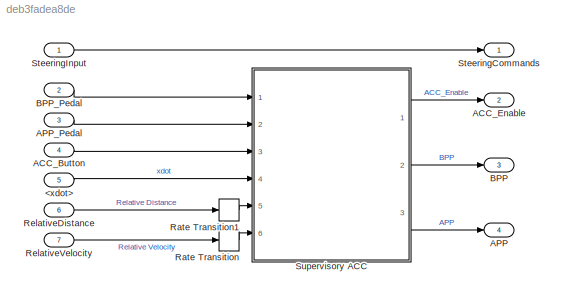
MODEL slx_deb3fadea8de
KIND model
CONFIG AbsTol = auto
CONFIG EnableMultiTasking = off
CONFIG FixedStep = 0.01
CONFIG InitFcn = initACCParams_pid;
CONFIG MaxStep = auto
CONFIG MinStep = auto
CONFIG PreLoadFcn = Ts1 = 0.01;\nTs2 = 0.1;
CONFIG RelTol = 1e-3
CONFIG SampleTimeConstraint = Unconstrained
CONFIG Solver = ode3
CONFIG SolverName = ode3
CONFIG StartTime = 0.0
CONFIG StopTime = 10
WORKSPACE source: mxarray member
WORKSPACE firstWarning = 1
WORKSPACE originalScenarioChecksum = '3C3E23DDE530CB8BEC76DD6DBB66960A'
BLOCK [Inport] <xdot>
  IconDisplay = Port number
  OutDataTypeStr = double
  Port = 5
  PortDimensions = 1
  SampleTime = Ts1
  SamplingMode = Sample based
  SignalType = real
BLOCK [Inport] ACC_Button
  IconDisplay = Port number
  OutDataTypeStr = double
  Port = 4
  PortDimensions = 1
  SampleTime = Ts1
  SamplingMode = Sample based
  SignalType = real
BLOCK [Outport] ACC_Enable
  IconDisplay = Port number
  OutDataTypeStr = double
  Port = 2
  PortDimensions = 1
  SamplingMode = Sample based
  SignalType = real
BLOCK [Outport] APP
  IconDisplay = Port number
  OutDataTypeStr = double
  Port = 4
  PortDimensions = 1
  SamplingMode = Sample based
  SignalType = real
BLOCK [Inport] APP_Pedal
  IconDisplay = Port number
  OutDataTypeStr = double
  Port = 3
  PortDimensions = 1
  SampleTime = Ts1
  SamplingMode = Sample based
  SignalType = real
BLOCK [Outport] BPP
  IconDisplay = Port number
  OutDataTypeStr = double
  Port = 3
  PortDimensions = 1
  SamplingMode = Sample based
  SignalType = real
BLOCK [Inport] BPP_Pedal
  IconDisplay = Port number
  OutDataTypeStr = double
  Port = 2
  PortDimensions = 1
  SampleTime = Ts1
  SamplingMode = Sample based
  SignalType = real
BLOCK [RateTransition] Rate Transition
BLOCK [RateTransition] Rate Transition1
BLOCK [Inport] RelativeDistance
  IconDisplay = Port number
  OutDataTypeStr = double
  Port = 6
  PortDimensions = [1 1]
  SampleTime = Ts2
  SamplingMode = Sample based
  SignalType = real
BLOCK [Inport] RelativeVelocity
  IconDisplay = Port number
  OutDataTypeStr = double
  Port = 7
  PortDimensions = [1 1]
  SampleTime = Ts2
  SamplingMode = Sample based
  SignalType = real
BLOCK [Outport] SteeringCommands
  IconDisplay = Port number
  OutDataTypeStr = double
  PortDimensions = 1
  SamplingMode = Sample based
  SignalType = real
BLOCK [Inport] SteeringInput 
  IconDisplay = Port number
  OutDataTypeStr = double
  PortDimensions = 1
  SampleTime = Ts1
  SamplingMode = Sample based
  SignalType = real
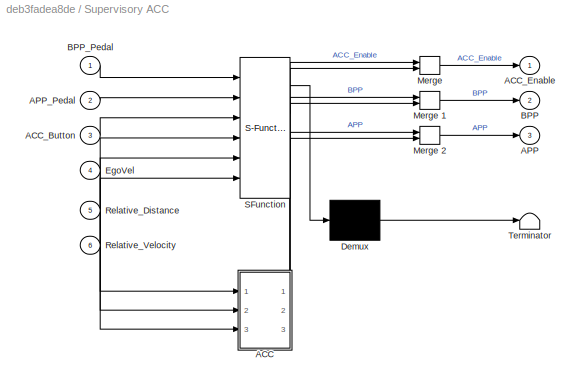
BLOCK [SubSystem] Supervisory ACC
  BlockKeywords = __PRM__SERIALIZED__DATA__:Stateflow Chart,Stateflow Diagram
  ErrorFcn = Stateflow.Translate.translate
  PermitHierarchicalResolution = ExplicitOnly
  Ports = [6, 3]
  RequestExecContextInheritance = off
  SFBlockType = Chart
  TreatAsAtomicUnit = on
BLOCK [Demux] Supervisory ACC/ Demux 
  Outputs = 1
  Ports = [1, 1]
BLOCK [Merge] Supervisory ACC/ Merge 
  Ports = [2, 1]
BLOCK [Merge] Supervisory ACC/ Merge 1
  Ports = [2, 1]
BLOCK [Merge] Supervisory ACC/ Merge 2
  Ports = [2, 1]
BLOCK [S-Function] Supervisory ACC/ SFunction 
  EnableBusSupport = on
  FunctionName = sf_sfun
  PortCounts = [6 4]
  Ports = [6, 4]
  SFcnIsStateOwnerBlock = off
  SFunctionDeploymentMode = off
  Tag = Stateflow S-Function 3
BLOCK [Terminator] Supervisory ACC/ Terminator 
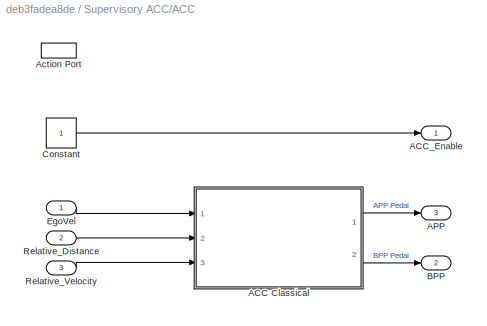
BLOCK [SubSystem] Supervisory ACC/ACC
  Ports = [3, 3, 0, 0, 0, 0, 0, 1]
  PreDeleteFcn = Stateflow.SLINSF.SimulinkMan.removePreDeleteFcn
  RequestExecContextInheritance = off
  UndoDeleteFcn = Stateflow.SLINSF.SimulinkMan.restorePreDeleteFcn
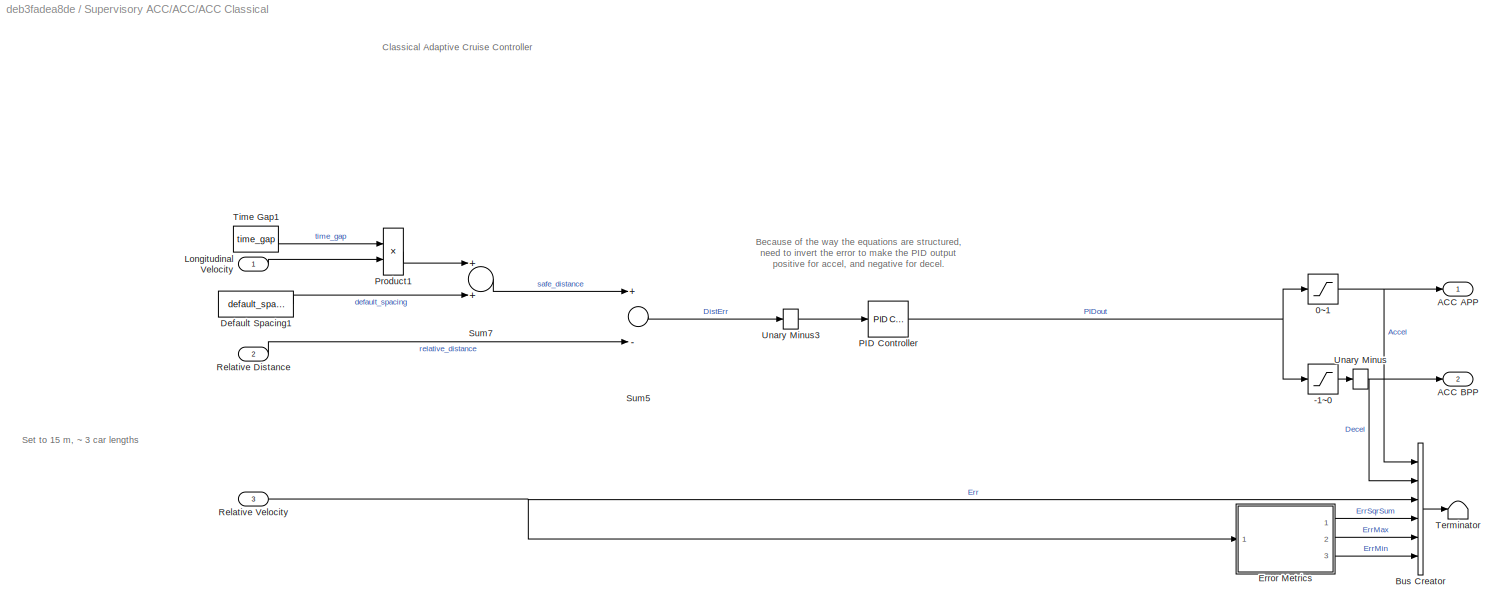
BLOCK [SubSystem] Supervisory ACC/ACC/ACC Classical
  Ports = [3, 2]
  RTWFileNameOpts = Use function name
  RTWSystemCode = Reusable function
  RequestExecContextInheritance = off
  VariantControl = controller_type == 1
BLOCK [Saturate] Supervisory ACC/ACC/ACC Classical/-1~0
  InputPortMap = u0
  LowerLimit = -1
  Ports = [1, 1]
  UpperLimit = 0
  ZeroCross = off
BLOCK [Saturate] Supervisory ACC/ACC/ACC Classical/0~1
  InputPortMap = u0
  LowerLimit = 0
  Ports = [1, 1]
  UpperLimit = 1
  ZeroCross = off
BLOCK [Outport] Supervisory ACC/ACC/ACC Classical/ACC APP
  IconDisplay = Port number
  InitialOutput = 0
  Unit = one
  VectorParamsAs1DForOutWhenUnconnected = off
BLOCK [Outport] Supervisory ACC/ACC/ACC Classical/ACC BPP
  IconDisplay = Port number
  InitialOutput = 0
  Port = 2
  Unit = one
  VectorParamsAs1DForOutWhenUnconnected = off
BLOCK [BusCreator] Supervisory ACC/ACC/ACC Classical/Bus Creator
  DisplayOption = bar
  InheritFromInputs = on
  Inputs = 6
  Ports = [6, 1]
BLOCK [Constant] Supervisory ACC/ACC/ACC Classical/Default Spacing1
  SampleTime = -1
  Value = default_spacing
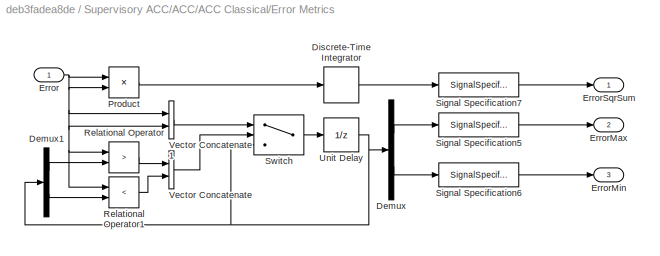
BLOCK [SubSystem] Supervisory ACC/ACC/ACC Classical/Error Metrics
  Ports = [1, 3]
  RequestExecContextInheritance = off
BLOCK [Demux] Supervisory ACC/ACC/ACC Classical/Error Metrics/Demux
  DisplayOption = bar
  Outputs = 2
  Ports = [1, 2]
BLOCK [Demux] Supervisory ACC/ACC/ACC Classical/Error Metrics/Demux1
  DisplayOption = bar
  Outputs = 2
  Ports = [1, 2]
BLOCK [DiscreteIntegrator] Supervisory ACC/ACC/ACC Classical/Error Metrics/Discrete-Time Integrator
  ICPrevOutput = DiscIntNeverNeededParam
  ICPrevScaledInput = DiscIntNeverNeededParam
  InitialConditionSetting = Auto
  Ports = [1, 1]
  SampleTime = -1
BLOCK [Inport] Supervisory ACC/ACC/ACC Classical/Error Metrics/Error
  IconDisplay = Port number
BLOCK [Outport] Supervisory ACC/ACC/ACC Classical/Error Metrics/ErrorMax
  IconDisplay = Port number
  Port = 2
  VectorParamsAs1DForOutWhenUnconnected = off
BLOCK [Outport] Supervisory ACC/ACC/ACC Classical/Error Metrics/ErrorMin
  IconDisplay = Port number
  Port = 3
  VectorParamsAs1DForOutWhenUnconnected = off
BLOCK [Outport] Supervisory ACC/ACC/ACC Classical/Error Metrics/ErrorSqrSum
  IconDisplay = Port number
  VectorParamsAs1DForOutWhenUnconnected = off
BLOCK [Product] Supervisory ACC/ACC/ACC Classical/Error Metrics/Product
  InputSameDT = off
  OutDataTypeStr = Inherit: Inherit via internal rule
  Ports = [2, 1]
  RndMeth = Floor
  SaturateOnIntegerOverflow = off
BLOCK [RelationalOperator] Supervisory ACC/ACC/ACC Classical/Error Metrics/Relational Operator
  InputSameDT = off
  Operator = >
  OutDataTypeStr = boolean
  Ports = [2, 1]
  RndMeth = Simplest
  ZeroCross = off
BLOCK [RelationalOperator] Supervisory ACC/ACC/ACC Classical/Error Metrics/Relational Operator1
  InputSameDT = off
  Operator = <
  OutDataTypeStr = boolean
  Ports = [2, 1]
  RndMeth = Simplest
  ZeroCross = off
BLOCK [SignalSpecification] Supervisory ACC/ACC/ACC Classical/Error Metrics/Signal Specification5
  Unit = m/s
BLOCK [SignalSpecification] Supervisory ACC/ACC/ACC Classical/Error Metrics/Signal Specification6
  Unit = m/s
BLOCK [SignalSpecification] Supervisory ACC/ACC/ACC Classical/Error Metrics/Signal Specification7
  Unit = m^2/s^2
BLOCK [Switch] Supervisory ACC/ACC/ACC Classical/Error Metrics/Switch
  Criteria = u2 > Threshold
  InputSameDT = off
  SaturateOnIntegerOverflow = off
BLOCK [UnitDelay] Supervisory ACC/ACC/ACC Classical/Error Metrics/Unit Delay
  HasFrameUpgradeWarning = on
  InitialCondition = [0,0]
  SampleTime = -1
BLOCK [Concatenate] Supervisory ACC/ACC/ACC Classical/Error Metrics/Vector Concatenate
  Ports = [2, 1]
BLOCK [Concatenate] Supervisory ACC/ACC/ACC Classical/Error Metrics/Vector Concatenate1
  Ports = [2, 1]
BLOCK [Inport] Supervisory ACC/ACC/ACC Classical/Longitudinal Velocity
  IconDisplay = Port number
BLOCK [Reference] Supervisory ACC/ACC/ACC Classical/PID Controller  REF=simulink/Continuous/PID Controller
  Ports = [1, 1]
  SourceBlock = simulink/Continuous/PID Controller
  SourceProductBaseCode = SL
  SourceProductName = Simulink
  SourceType = PID 1dof
BLOCK [Product] Supervisory ACC/ACC/ACC Classical/Product1
  InputSameDT = off
  OutDataTypeStr = Inherit: Inherit via internal rule
  Ports = [2, 1]
  RndMeth = Floor
  SaturateOnIntegerOverflow = off
BLOCK [Inport] Supervisory ACC/ACC/ACC Classical/Relative Distance
  IconDisplay = Port number
  Port = 2
BLOCK [Inport] Supervisory ACC/ACC/ACC Classical/Relative Velocity
  IconDisplay = Port number
  Port = 3
BLOCK [Sum] Supervisory ACC/ACC/ACC Classical/Sum5
  InputSameDT = off
  Inputs = +-
  OutDataTypeStr = Inherit: Inherit via internal rule
  Ports = [2, 1]
  SaturateOnIntegerOverflow = off
BLOCK [Sum] Supervisory ACC/ACC/ACC Classical/Sum7
  InputSameDT = off
  OutDataTypeStr = Inherit: Inherit via internal rule
  Ports = [2, 1]
  SaturateOnIntegerOverflow = off
BLOCK [Terminator] Supervisory ACC/ACC/ACC Classical/Terminator
BLOCK [Constant] Supervisory ACC/ACC/ACC Classical/Time Gap1
  SampleTime = -1
  Value = time_gap
BLOCK [UnaryMinus] Supervisory ACC/ACC/ACC Classical/Unary Minus
BLOCK [UnaryMinus] Supervisory ACC/ACC/ACC Classical/Unary Minus3
BLOCK [Outport] Supervisory ACC/ACC/ACC_Enable
  IconDisplay = Port number
BLOCK [Outport] Supervisory ACC/ACC/APP
  IconDisplay = Port number
  Port = 3
BLOCK [ActionPort] Supervisory ACC/ACC/Action Port
  CopyFcn = Stateflow.SLINSF.SimulinkMan.removeBlockPreDeleteFcn
  PreDeleteFcn = Stateflow.SLINSF.SimulinkMan.unsafePredeleteFcn
BLOCK [Outport] Supervisory ACC/ACC/BPP
  IconDisplay = Port number
  Port = 2
BLOCK [Constant] Supervisory ACC/ACC/Constant
  SampleTime = -1
BLOCK [Inport] Supervisory ACC/ACC/EgoVel
  IconDisplay = Port number
BLOCK [Inport] Supervisory ACC/ACC/Relative_Distance
  IconDisplay = Port number
  Port = 2
BLOCK [Inport] Supervisory ACC/ACC/Relative_Velocity
  IconDisplay = Port number
  Port = 3
BLOCK [Inport] Supervisory ACC/ACC_Button
  IconDisplay = Port number
  Port = 3
BLOCK [Outport] Supervisory ACC/ACC_Enable
  IconDisplay = Port number
BLOCK [Outport] Supervisory ACC/APP
  IconDisplay = Port number
  Port = 3
BLOCK [Inport] Supervisory ACC/APP_Pedal
  IconDisplay = Port number
  Port = 2
BLOCK [Outport] Supervisory ACC/BPP
  IconDisplay = Port number
  Port = 2
BLOCK [Inport] Supervisory ACC/BPP_Pedal
  IconDisplay = Port number
BLOCK [Inport] Supervisory ACC/EgoVel
  IconDisplay = Port number
  Port = 4
BLOCK [Inport] Supervisory ACC/Relative_Distance
  IconDisplay = Port number
  Port = 5
BLOCK [Inport] Supervisory ACC/Relative_Velocity
  IconDisplay = Port number
  Port = 6
ANNOTATION Supervisory ACC/ACC/ACC Classical: Classical Adaptive Cruise Controller
ANNOTATION Supervisory ACC/ACC/ACC Classical: Because of the way the equations are structured, need to invert the error to make the PID output positive for accel, and negative for decel.
ANNOTATION Supervisory ACC/ACC/ACC Classical: Set to 15 m, ~ 3 car lengths
LINE <xdot>:1 -> Supervisory ACC:4
LINE ACC_Button:1 -> Supervisory ACC:3
LINE APP_Pedal:1 -> Supervisory ACC:2
LINE BPP_Pedal:1 -> Supervisory ACC:1
LINE Rate Transition1:1 -> Supervisory ACC:5
LINE Rate Transition:1 -> Supervisory ACC:6
LINE RelativeDistance:1 -> Rate Transition1:1
LINE RelativeVelocity:1 -> Rate Transition:1
LINE SteeringInput :1 -> SteeringCommands:1
LINE Supervisory ACC:1 -> ACC_Enable:1
LINE Supervisory ACC:2 -> BPP:1
LINE Supervisory ACC:3 -> APP:1
CHART Supervisory ACC states=4 transitions=6
  STATE_LABEL 'WaitOff'
  STATE_LABEL 'Normal\nduring:\nAPP = APP_Pedal;\nBPP = BPP_Pedal;\nACC_Enable = 0;'
  STATE_LABEL 'ACC'
  STATE_LABEL 'WaitOn'
